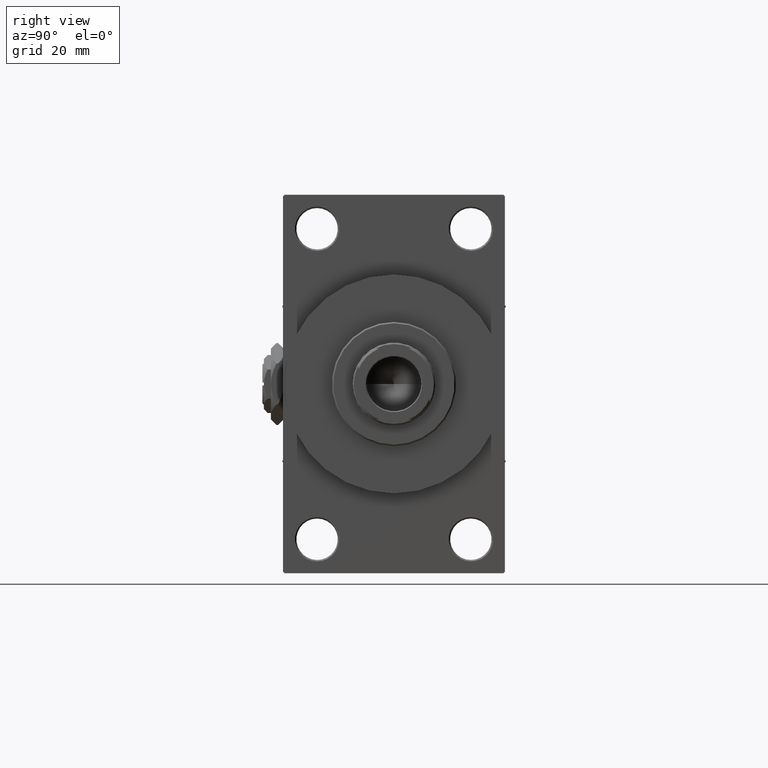
[diagram: clean part render]
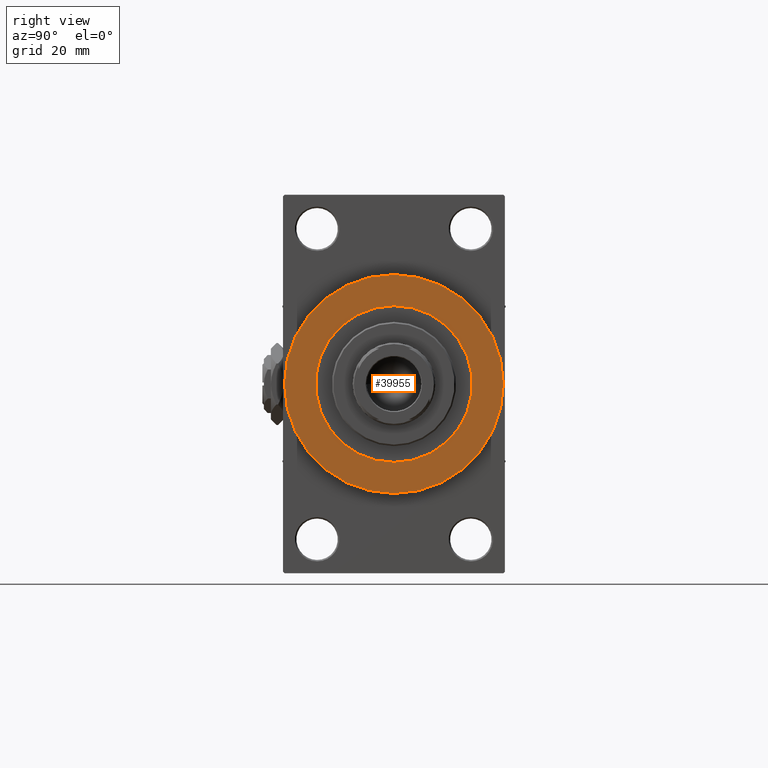
[diagram: same view with one face highlighted and labeled with its STEP entity id]
A machine part, right view. The second image highlights one B-rep face of the part: STEP entity #39955.
In plain terms, the highlighted planar face has unit normal (1, 0, 0).
Its self-contained STEP definition (entity closure, byte-faithful):
#4635 = VERTEX_POINT ( 'NONE', #35186 ) ;
#5153 = AXIS2_PLACEMENT_3D ( 'NONE', #44261, #13837, #17323 ) ;
#6167 = EDGE_CURVE ( 'NONE', #33654, #41201, #44968, .T. ) ;
#6737 = EDGE_CURVE ( 'NONE', #13296, #4635, #31470, .T. ) ;
#7164 = ORIENTED_EDGE ( 'NONE', *, *, #35090, .F. ) ;
#8346 = CARTESIAN_POINT ( 'NONE',  ( 154.0000000000000284, 0.000000000000000000, 0.000000000000000000 ) ) ;
#9194 = AXIS2_PLACEMENT_3D ( 'NONE', #16072, #30777, #12585 ) ;
#9238 = CARTESIAN_POINT ( 'NONE',  ( 154.0000000000000284, 3.245314017740486554E-15, 26.50000000000000355 ) ) ;
#9301 = AXIS2_PLACEMENT_3D ( 'NONE', #11291, #31197, #46406 ) ;
#9905 = CIRCLE ( 'NONE', #5153, 26.50000000000000355 ) ;
#11291 = CARTESIAN_POINT ( 'NONE',  ( 154.0000000000000284, 0.000000000000000000, 0.000000000000000000 ) ) ;
#12040 = CARTESIAN_POINT ( 'NONE',  ( 154.0000000000000284, 0.000000000000000000, 37.00000000000000000 ) ) ;
#12585 = DIRECTION ( 'NONE',  ( 0.000000000000000000, 0.000000000000000000, -1.000000000000000000 ) ) ;
#13296 = VERTEX_POINT ( 'NONE', #12040 ) ;
#13837 = DIRECTION ( 'NONE',  ( 1.000000000000000000, 0.000000000000000000, 0.000000000000000000 ) ) ;
#14847 = EDGE_CURVE ( 'NONE', #4635, #13296, #39543, .T. ) ;
#16072 = CARTESIAN_POINT ( 'NONE',  ( 154.0000000000000284, 0.000000000000000000, 0.000000000000000000 ) ) ;
#17323 = DIRECTION ( 'NONE',  ( 0.000000000000000000, 0.000000000000000000, -1.000000000000000000 ) ) ;
#20055 = DIRECTION ( 'NONE',  ( 0.000000000000000000, 0.000000000000000000, -1.000000000000000000 ) ) ;
#21079 = AXIS2_PLACEMENT_3D ( 'NONE', #8346, #38992, #20055 ) ;
#21383 = ORIENTED_EDGE ( 'NONE', *, *, #14847, .T. ) ;
#21500 = CARTESIAN_POINT ( 'NONE',  ( 154.0000000000000284, 0.000000000000000000, 0.000000000000000000 ) ) ;
#22852 = ORIENTED_EDGE ( 'NONE', *, *, #6167, .F. ) ;
#27620 = AXIS2_PLACEMENT_3D ( 'NONE', #21500, #32435, #28210 ) ;
#28210 = DIRECTION ( 'NONE',  ( 0.000000000000000000, 0.000000000000000000, -1.000000000000000000 ) ) ;
#30231 = CARTESIAN_POINT ( 'NONE',  ( 154.0000000000000284, 0.000000000000000000, -26.50000000000000355 ) ) ;
#30777 = DIRECTION ( 'NONE',  ( 1.000000000000000000, 0.000000000000000000, 0.000000000000000000 ) ) ;
#31197 = DIRECTION ( 'NONE',  ( 1.000000000000000000, 0.000000000000000000, 0.000000000000000000 ) ) ;
#31470 = CIRCLE ( 'NONE', #9194, 37.00000000000000000 ) ;
#32435 = DIRECTION ( 'NONE',  ( 1.000000000000000000, 0.000000000000000000, 0.000000000000000000 ) ) ;
#33654 = VERTEX_POINT ( 'NONE', #30231 ) ;
#35090 = EDGE_CURVE ( 'NONE', #41201, #33654, #9905, .T. ) ;
#35186 = CARTESIAN_POINT ( 'NONE',  ( 154.0000000000000284, 4.531193156845206793E-15, -37.00000000000000000 ) ) ;
#36682 = FACE_OUTER_BOUND ( 'NONE', #48427, .T. ) ;
#38992 = DIRECTION ( 'NONE',  ( 1.000000000000000000, 0.000000000000000000, 0.000000000000000000 ) ) ;
#39455 = PLANE ( 'NONE',  #27620 ) ;
#39543 = CIRCLE ( 'NONE', #9301, 37.00000000000000000 ) ;
#39955 = ADVANCED_FACE ( 'NONE', ( #47909, #36682 ), #39455, .T. ) ;
#41201 = VERTEX_POINT ( 'NONE', #9238 ) ;
#44261 = CARTESIAN_POINT ( 'NONE',  ( 154.0000000000000284, 0.000000000000000000, 0.000000000000000000 ) ) ;
#44968 = CIRCLE ( 'NONE', #21079, 26.50000000000000355 ) ;
#46406 = DIRECTION ( 'NONE',  ( 0.000000000000000000, 0.000000000000000000, -1.000000000000000000 ) ) ;
#47909 = FACE_BOUND ( 'NONE', #48970, .T. ) ;
#48427 = EDGE_LOOP ( 'NONE', ( #48815, #21383 ) ) ;
#48815 = ORIENTED_EDGE ( 'NONE', *, *, #6737, .T. ) ;
#48970 = EDGE_LOOP ( 'NONE', ( #22852, #7164 ) ) ;